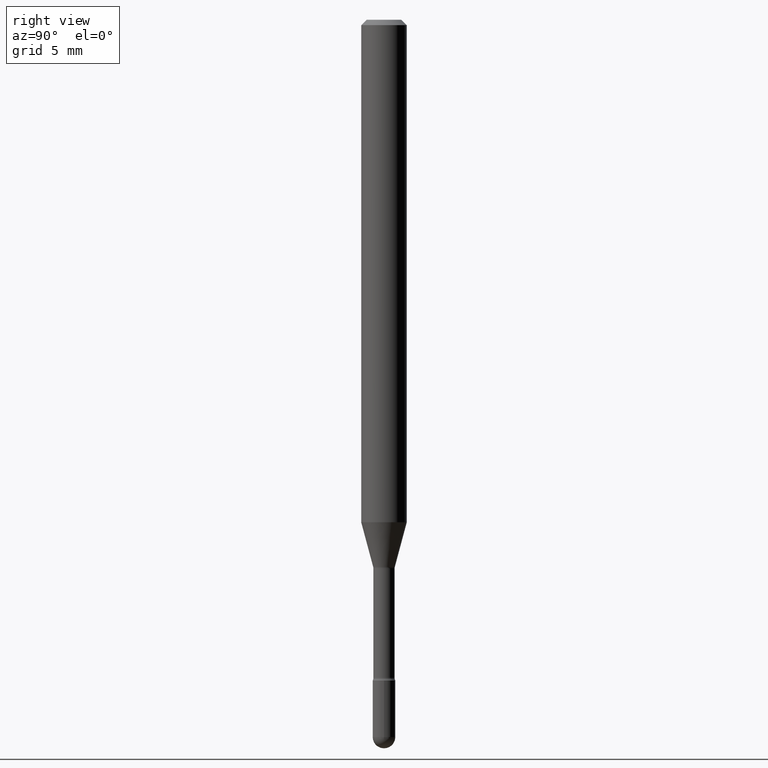
[diagram: clean part render]
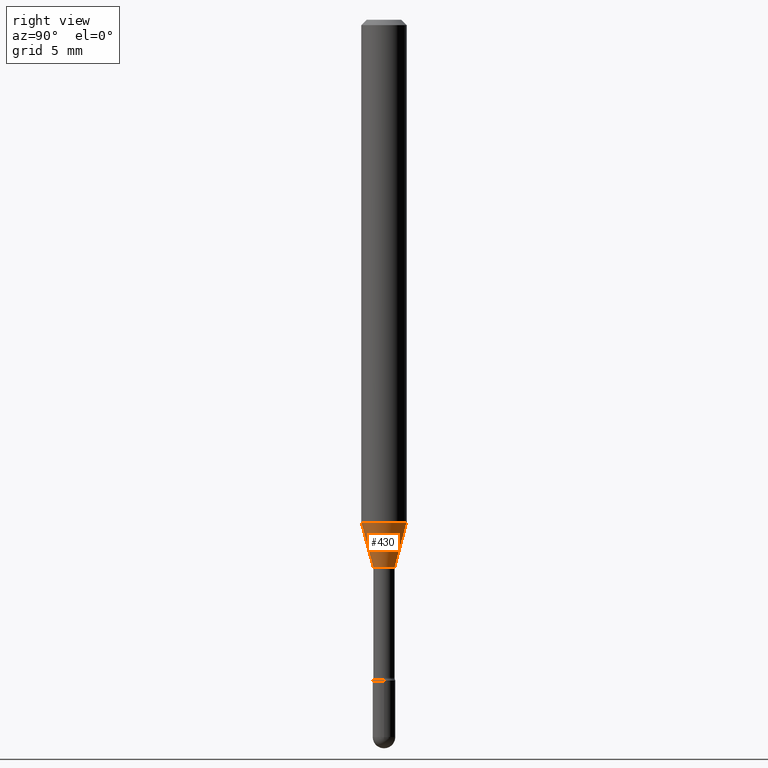
[diagram: same view with one face highlighted and labeled with its STEP entity id]
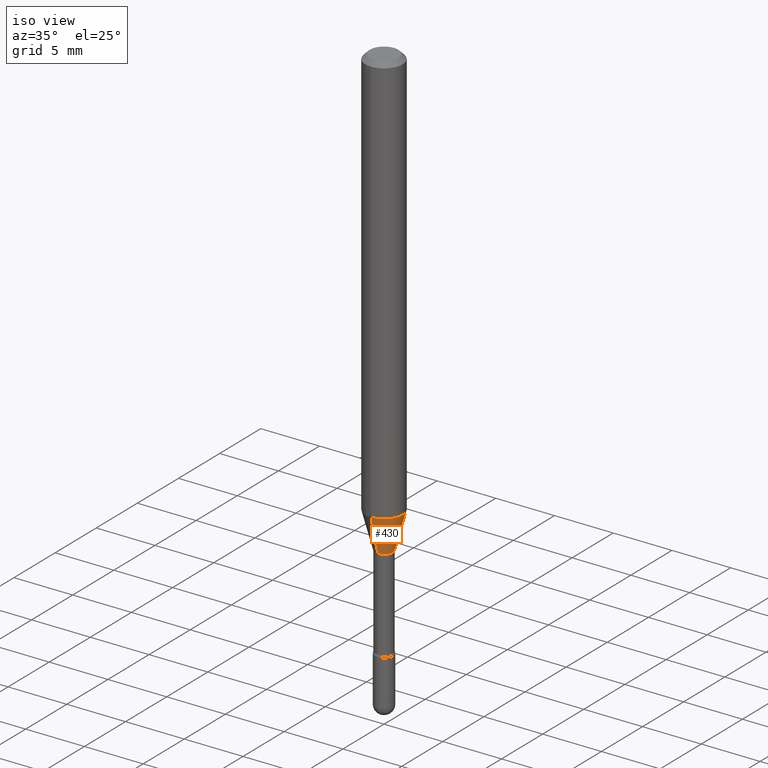
[diagram: same view with one face highlighted and labeled with its STEP entity id]
A machine part, right view. The second image highlights one B-rep face of the part: STEP entity #430.
A second angle (iso view) of the same face is appended — the face is thin or edge-on in the first view.
In plain terms, the highlighted conical surface has half-angle 15 deg.
Its self-contained STEP definition (entity closure, byte-faithful):
#56 = LINE ( 'NONE', #534, #112 ) ;
#57 = DIRECTION ( 'NONE',  ( -2.445468536737133447E-29, 3.491481724708021844E-15, 1.000000000000000000 ) ) ;
#61 = DIRECTION ( 'NONE',  ( 1.839019923739594793E-15, 0.2588190451025241812, 0.9659258262890673130 ) ) ;
#69 = AXIS2_PLACEMENT_3D ( 'NONE', #546, #211, #382 ) ;
#74 = EDGE_CURVE ( 'NONE', #458, #429, #554, .T. ) ;
#76 = EDGE_LOOP ( 'NONE', ( #481, #170, #297, #529 ) ) ;
#95 = CARTESIAN_POINT ( 'NONE',  ( 4.440892098500961428E-16, 0.06249999999999515665, -1.379536105567578330 ) ) ;
#112 = VECTOR ( 'NONE', #61, 39.37007874015748854 ) ;
#115 = CARTESIAN_POINT ( 'NONE',  ( -4.364351673553580935E-16, -0.06250000000000484335, -1.379536105567577886 ) ) ;
#134 = DIRECTION ( 'NONE',  ( -2.445468536737133447E-29, 3.491481724708021844E-15, 1.000000000000000000 ) ) ;
#147 = CARTESIAN_POINT ( 'NONE',  ( 3.673319952389542966E-29, -5.244528518811216115E-15, -1.502092501787273271 ) ) ;
#170 = ORIENTED_EDGE ( 'NONE', *, *, #177, .T. ) ;
#177 = EDGE_CURVE ( 'NONE', #429, #565, #56, .T. ) ;
#182 = DIRECTION ( 'NONE',  ( -1.807323732225324617E-15, -0.2588190451025174088, 0.9659258262890690894 ) ) ;
#189 = LINE ( 'NONE', #220, #508 ) ;
#200 = DIRECTION ( 'NONE',  ( -6.982962677686265922E-15, -1.000000000000000000, 0.000000000000000000 ) ) ;
#209 = VERTEX_POINT ( 'NONE', #115 ) ;
#211 = DIRECTION ( 'NONE',  ( -2.445468536737133447E-29, 3.491481724708021844E-15, 1.000000000000000000 ) ) ;
#220 = CARTESIAN_POINT ( 'NONE',  ( -2.071224423039644956E-16, -0.02966111260566922994, -1.502092501787273271 ) ) ;
#247 = AXIS2_PLACEMENT_3D ( 'NONE', #351, #134, #522 ) ;
#271 = CARTESIAN_POINT ( 'NONE',  ( -2.071224423039644956E-16, -0.02966111260566922994, -1.502092501787273271 ) ) ;
#297 = ORIENTED_EDGE ( 'NONE', *, *, #393, .F. ) ;
#347 = FACE_OUTER_BOUND ( 'NONE', #76, .T. ) ;
#351 = CARTESIAN_POINT ( 'NONE',  ( 3.673319952389542966E-29, -5.244528518811216115E-15, -1.502092501787273271 ) ) ;
#358 = CONICAL_SURFACE ( 'NONE', #247, 0.02966111260566398414, 0.2617993877991495189 ) ;
#366 = AXIS2_PLACEMENT_3D ( 'NONE', #147, #57, #200 ) ;
#382 = DIRECTION ( 'NONE',  ( -6.982962677686265922E-15, -1.000000000000000000, 4.370956789862821150E-15 ) ) ;
#389 = CARTESIAN_POINT ( 'NONE',  ( 3.274220454076509529E-16, 0.02966111260565873833, -1.502092501787273271 ) ) ;
#393 = EDGE_CURVE ( 'NONE', #209, #565, #498, .T. ) ;
#429 = VERTEX_POINT ( 'NONE', #389 ) ;
#430 = ADVANCED_FACE ( 'NONE', ( #347 ), #358, .T. ) ;
#434 = EDGE_CURVE ( 'NONE', #458, #209, #189, .T. ) ;
#458 = VERTEX_POINT ( 'NONE', #271 ) ;
#481 = ORIENTED_EDGE ( 'NONE', *, *, #74, .T. ) ;
#498 = CIRCLE ( 'NONE', #69, 0.06250000000000000000 ) ;
#508 = VECTOR ( 'NONE', #182, 39.37007874015748854 ) ;
#522 = DIRECTION ( 'NONE',  ( -6.982962677686265922E-15, -1.000000000000000000, 0.000000000000000000 ) ) ;
#529 = ORIENTED_EDGE ( 'NONE', *, *, #434, .F. ) ;
#534 = CARTESIAN_POINT ( 'NONE',  ( 2.107548809652055165E-16, 0.02966111260565873833, -1.502092501787273271 ) ) ;
#546 = CARTESIAN_POINT ( 'NONE',  ( 3.373612141458388691E-29, -4.816625101164075129E-15, -1.379536105567578108 ) ) ;
#554 = CIRCLE ( 'NONE', #366, 0.02966111260566398414 ) ;
#565 = VERTEX_POINT ( 'NONE', #95 ) ;